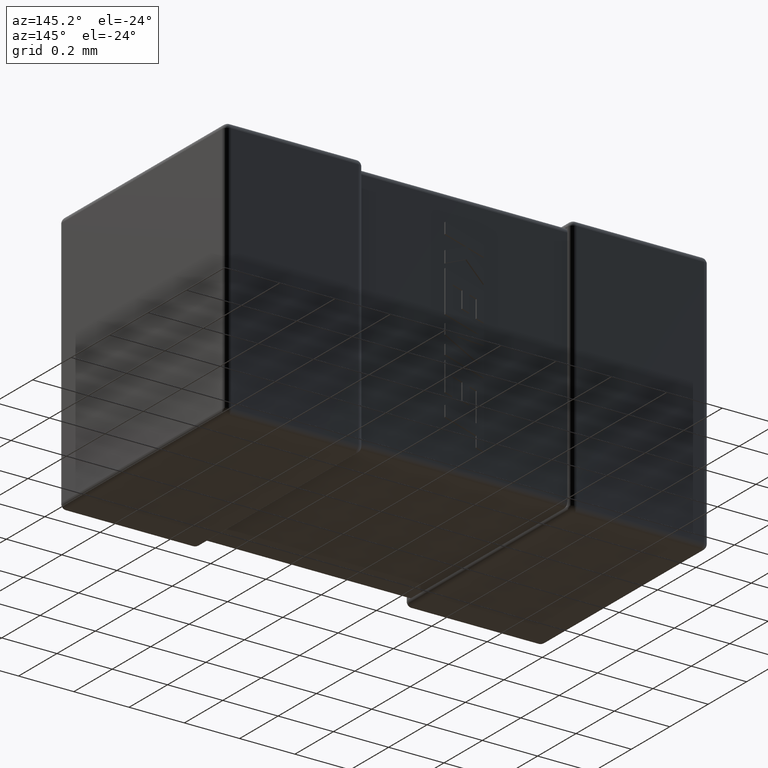
[diagram: clean part render]
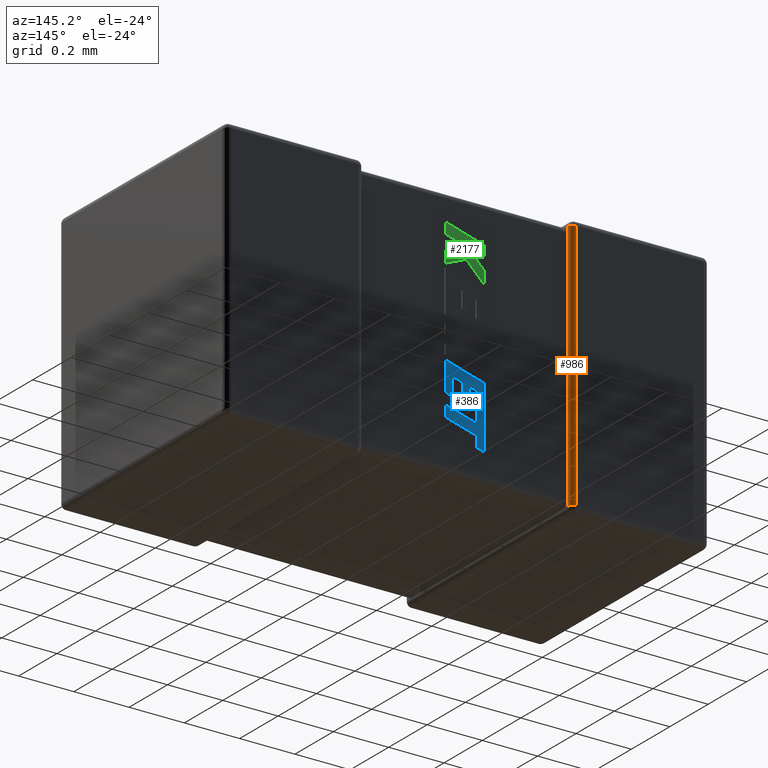
[diagram: same view with three faces highlighted in distinct colors, each labeled with its STEP entity id]
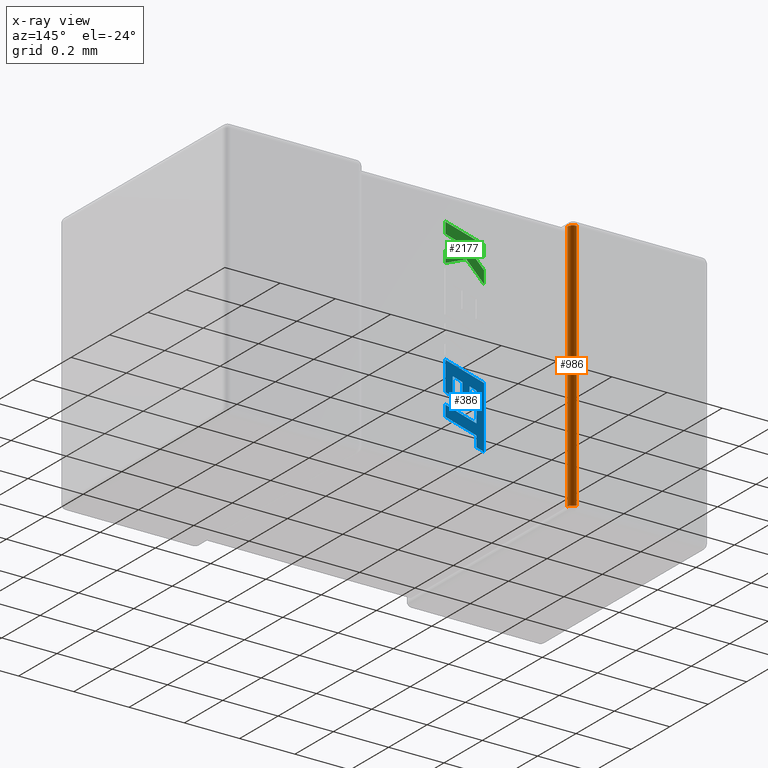
[diagram: x-ray of the same camera — body ghosted, the three highlighted faces saturated]
A machine part, auxiliary view with three faces highlighted in distinct colors.
The next image is the same camera in x-ray (body ghosted, the three faces saturated) — at least one of them is partly hidden behind the body in this view.
Their STEP definitions:

[orange] entity #986 — the highlighted cylindrical surface (edge-blend (fillet) strip) has radius 0.0198 mm, axis along (0, 0, 1).
#17 = DIRECTION ( 'NONE',  ( 0.000000000000000000, 0.000000000000000000, -1.000000000000000000 ) ) ;
#247 = EDGE_CURVE ( 'NONE', #4336, #4497, #4153, .T. ) ;
#357 = EDGE_CURVE ( 'NONE', #700, #870, #3877, .T. ) ;
#481 = CARTESIAN_POINT ( 'NONE',  ( 0.4999999999999998890, 0.8502400000000001068, -0.9500000000000000666 ) ) ;
#582 = CARTESIAN_POINT ( 'NONE',  ( 0.4802399999999998337, 0.8700000000000001066, 0.000000000000000000 ) ) ;
#700 = VERTEX_POINT ( 'NONE', #1347 ) ;
#714 = FACE_OUTER_BOUND ( 'NONE', #2705, .T. ) ;
#759 = CARTESIAN_POINT ( 'NONE',  ( 0.4999999999999998890, 0.8502400000000001068, -0.9500000000000000666 ) ) ;
#787 = ORIENTED_EDGE ( 'NONE', *, *, #247, .F. ) ;
#853 = ORIENTED_EDGE ( 'NONE', *, *, #4557, .F. ) ;
#870 = VERTEX_POINT ( 'NONE', #3107 ) ;
#873 = DIRECTION ( 'NONE',  ( 0.000000000000000000, 0.000000000000000000, 1.000000000000000000 ) ) ;
#986 = ADVANCED_FACE ( 'NONE', ( #714 ), #4658, .T. ) ;
#1283 = EDGE_CURVE ( 'NONE', #3231, #700, #4412, .T. ) ;
#1296 = CARTESIAN_POINT ( 'NONE',  ( 0.4802399999999998892, 0.8502400000000001068, -0.01975999999999995815 ) ) ;
#1347 = CARTESIAN_POINT ( 'NONE',  ( 0.4999999999999998890, 0.8502400000000001068, -0.9302400000000001778 ) ) ;
#1364 = VECTOR ( 'NONE', #873, 1000.000000000000000 ) ;
#1442 = VECTOR ( 'NONE', #4615, 1000.000000000000000 ) ;
#1495 = CARTESIAN_POINT ( 'NONE',  ( 0.4802399999999998892, 0.8700000000000001066, -0.01975999999999999979 ) ) ;
#1540 = VERTEX_POINT ( 'NONE', #2756 ) ;
#1549 = EDGE_CURVE ( 'NONE', #4497, #3231, #3796, .T. ) ;
#1568 = LINE ( 'NONE', #481, #1364 ) ;
#1655 = ORIENTED_EDGE ( 'NONE', *, *, #1549, .F. ) ;
#1734 = DIRECTION ( 'NONE',  ( 0.000000000000000000, 0.000000000000000000, 1.000000000000000000 ) ) ;
#1868 = ORIENTED_EDGE ( 'NONE', *, *, #1283, .F. ) ;
#2485 = DIRECTION ( 'NONE',  ( 1.000000000000000000, 0.000000000000000000, 0.000000000000000000 ) ) ;
#2509 = CARTESIAN_POINT ( 'NONE',  ( 0.4802399999999998892, 0.8502400000000001068, -0.9500000000000000666 ) ) ;
#2608 = AXIS2_PLACEMENT_3D ( 'NONE', #2509, #1734, #2485 ) ;
#2705 = EDGE_LOOP ( 'NONE', ( #3013, #1868, #1655, #787, #853, #3981 ) ) ;
#2707 = DIRECTION ( 'NONE',  ( -0.000000000000000000, -0.000000000000000000, -1.000000000000000000 ) ) ;
#2756 = CARTESIAN_POINT ( 'NONE',  ( 0.4999999999999998890, 0.8502400000000001068, -0.03951999999999991631 ) ) ;
#2757 = VECTOR ( 'NONE', #2707, 1000.000000000000000 ) ;
#2888 = DIRECTION ( 'NONE',  ( -0.000000000000000000, -0.000000000000000000, 1.000000000000000000 ) ) ;
#3013 = ORIENTED_EDGE ( 'NONE', *, *, #357, .F. ) ;
#3073 = AXIS2_PLACEMENT_3D ( 'NONE', #3821, #17, #3932 ) ;
#3107 = CARTESIAN_POINT ( 'NONE',  ( 0.4999999999999998890, 0.8502400000000001068, -0.9104800000000001781 ) ) ;
#3231 = VERTEX_POINT ( 'NONE', #4506 ) ;
#3242 = LINE ( 'NONE', #759, #4236 ) ;
#3600 = CARTESIAN_POINT ( 'NONE',  ( 0.4999999999999998890, 0.8502400000000001068, -0.9500000000000000666 ) ) ;
#3796 = LINE ( 'NONE', #582, #2757 ) ;
#3821 = CARTESIAN_POINT ( 'NONE',  ( 0.4802399999999998892, 0.8502400000000001068, -0.9302400000000001778 ) ) ;
#3877 = LINE ( 'NONE', #3600, #1442 ) ;
#3932 = DIRECTION ( 'NONE',  ( -1.000000000000000000, 0.000000000000000000, 0.000000000000000000 ) ) ;
#3981 = ORIENTED_EDGE ( 'NONE', *, *, #4475, .F. ) ;
#4089 = DIRECTION ( 'NONE',  ( 0.000000000000000000, -1.000000000000000000, 2.057569912358628671E-15 ) ) ;
#4153 = CIRCLE ( 'NONE', #4228, 0.01975999999999995815 ) ;
#4228 = AXIS2_PLACEMENT_3D ( 'NONE', #1296, #4498, #4089 ) ;
#4236 = VECTOR ( 'NONE', #2888, 1000.000000000000000 ) ;
#4252 = CARTESIAN_POINT ( 'NONE',  ( 0.5000000000000000000, 0.8502400000000001068, -0.01975999999999995815 ) ) ;
#4336 = VERTEX_POINT ( 'NONE', #4252 ) ;
#4412 = CIRCLE ( 'NONE', #3073, 0.01976000000000001366 ) ;
#4475 = EDGE_CURVE ( 'NONE', #870, #1540, #3242, .T. ) ;
#4497 = VERTEX_POINT ( 'NONE', #1495 ) ;
#4498 = DIRECTION ( 'NONE',  ( 1.128958385131595415E-29, 2.057569912358628671E-15, 1.000000000000000000 ) ) ;
#4506 = CARTESIAN_POINT ( 'NONE',  ( 0.4802399999999998892, 0.8700000000000001066, -0.9302400000000001778 ) ) ;
#4557 = EDGE_CURVE ( 'NONE', #1540, #4336, #1568, .T. ) ;
#4615 = DIRECTION ( 'NONE',  ( 0.000000000000000000, 0.000000000000000000, 1.000000000000000000 ) ) ;
#4658 = CYLINDRICAL_SURFACE ( 'NONE', #2608, 0.01976000000000001366 ) ;

[blue] entity #386 — the highlighted planar face has unit normal (0, 1, 0).
#27 = DIRECTION ( 'NONE',  ( 0.000000000000000000, 0.000000000000000000, -1.000000000000000000 ) ) ;
#32 = DIRECTION ( 'NONE',  ( -0.9610992334305258344, 0.000000000000000000, -0.2762033010288897361 ) ) ;
#49 = VERTEX_POINT ( 'NONE', #2759 ) ;
#51 = LINE ( 'NONE', #1470, #997 ) ;
#142 = VECTOR ( 'NONE', #27, 1000.000000000000000 ) ;
#150 = VERTEX_POINT ( 'NONE', #2129 ) ;
#229 = VERTEX_POINT ( 'NONE', #3490 ) ;
#240 = VECTOR ( 'NONE', #323, 1000.000000000000000 ) ;
#280 = LINE ( 'NONE', #3163, #3112 ) ;
#293 = EDGE_CURVE ( 'NONE', #2397, #1569, #669, .T. ) ;
#296 = EDGE_CURVE ( 'NONE', #2839, #2088, #2841, .T. ) ;
#323 = DIRECTION ( 'NONE',  ( 0.000000000000000000, 0.000000000000000000, -1.000000000000000000 ) ) ;
#339 = VERTEX_POINT ( 'NONE', #4255 ) ;
#386 = ADVANCED_FACE ( 'NONE', ( #1386 ), #2080, .T. ) ;
#391 = AXIS2_PLACEMENT_3D ( 'NONE', #3204, #1411, #2817 ) ;
#480 = VERTEX_POINT ( 'NONE', #2910 ) ;
#484 = CARTESIAN_POINT ( 'NONE',  ( 0.8579047061092540671, 0.8552400000000002223, -0.6320972640410175147 ) ) ;
#495 = LINE ( 'NONE', #3378, #1448 ) ;
#519 = LINE ( 'NONE', #1634, #1615 ) ;
#538 = VECTOR ( 'NONE', #1329, 1000.000000000000000 ) ;
#602 = CARTESIAN_POINT ( 'NONE',  ( 0.8053395720805847091, 0.8552400000000002223, -0.6076780704998633320 ) ) ;
#659 = ORIENTED_EDGE ( 'NONE', *, *, #3129, .T. ) ;
#669 = LINE ( 'NONE', #3860, #240 ) ;
#716 = ORIENTED_EDGE ( 'NONE', *, *, #1315, .T. ) ;
#774 = ORIENTED_EDGE ( 'NONE', *, *, #4413, .T. ) ;
#819 = VECTOR ( 'NONE', #3914, 1000.000000000000114 ) ;
#894 = LINE ( 'NONE', #3799, #2950 ) ;
#967 = ORIENTED_EDGE ( 'NONE', *, *, #4437, .T. ) ;
#997 = VECTOR ( 'NONE', #2216, 1000.000000000000000 ) ;
#1032 = CARTESIAN_POINT ( 'NONE',  ( 0.9450000000000022826, 0.8552400000000002223, -0.5675068321918840253 ) ) ;
#1061 = VECTOR ( 'NONE', #3375, 1000.000000000000000 ) ;
#1212 = LINE ( 'NONE', #2310, #3162 ) ;
#1315 = EDGE_CURVE ( 'NONE', #3569, #150, #1392, .T. ) ;
#1329 = DIRECTION ( 'NONE',  ( 0.000000000000000000, 0.000000000000000000, -1.000000000000000000 ) ) ;
#1363 = CARTESIAN_POINT ( 'NONE',  ( 0.8837184572186719267, 0.8552400000000002223, -0.6846573022445086032 ) ) ;
#1372 = VECTOR ( 'NONE', #3229, 1000.000000000000227 ) ;
#1386 = FACE_OUTER_BOUND ( 'NONE', #4156, .T. ) ;
#1392 = LINE ( 'NONE', #2046, #4264 ) ;
#1411 = DIRECTION ( 'NONE',  ( 0.000000000000000000, 1.000000000000000000, 0.000000000000000000 ) ) ;
#1414 = VERTEX_POINT ( 'NONE', #4021 ) ;
#1421 = LINE ( 'NONE', #2483, #819 ) ;
#1448 = VECTOR ( 'NONE', #3092, 1000.000000000000227 ) ;
#1454 = CARTESIAN_POINT ( 'NONE',  ( 0.8323054043045601258, 0.8552400000000002223, -0.7858892641360935016 ) ) ;
#1470 = CARTESIAN_POINT ( 'NONE',  ( 0.8053395720805847091, 0.8552400000000002223, -0.8318773867419929635 ) ) ;
#1473 = VERTEX_POINT ( 'NONE', #602 ) ;
#1552 = ORIENTED_EDGE ( 'NONE', *, *, #3099, .T. ) ;
#1569 = VERTEX_POINT ( 'NONE', #1363 ) ;
#1610 = CARTESIAN_POINT ( 'NONE',  ( 0.8053395720805847091, 0.8552400000000002223, -0.8318773867419929635 ) ) ;
#1615 = VECTOR ( 'NONE', #4570, 1000.000000000000227 ) ;
#1634 = CARTESIAN_POINT ( 'NONE',  ( 0.8837184572186719267, 0.8552400000000002223, -0.6846573022445086032 ) ) ;
#1754 = CARTESIAN_POINT ( 'NONE',  ( 0.8323084399399934830, 0.8552400000000002223, -0.8241270004460923282 ) ) ;
#1873 = LINE ( 'NONE', #484, #3327 ) ;
#1887 = EDGE_CURVE ( 'NONE', #339, #2151, #1873, .T. ) ;
#1892 = CARTESIAN_POINT ( 'NONE',  ( 0.8319278885981585825, 0.8552400000000002223, -0.6396560712027574702 ) ) ;
#1935 = CARTESIAN_POINT ( 'NONE',  ( 0.8579047061092540671, 0.8552400000000002223, -0.6920318104001741411 ) ) ;
#1953 = DIRECTION ( 'NONE',  ( 0.000000000000000000, 0.000000000000000000, 1.000000000000000000 ) ) ;
#1992 = VERTEX_POINT ( 'NONE', #4160 ) ;
#2046 = CARTESIAN_POINT ( 'NONE',  ( 0.8323054043042135142, 0.8552400000000002223, -0.7461146509902788493 ) ) ;
#2070 = EDGE_CURVE ( 'NONE', #1992, #3392, #4555, .T. ) ;
#2080 = PLANE ( 'NONE',  #391 ) ;
#2088 = VERTEX_POINT ( 'NONE', #1754 ) ;
#2097 = EDGE_CURVE ( 'NONE', #49, #2839, #3846, .T. ) ;
#2109 = CARTESIAN_POINT ( 'NONE',  ( 0.8837184572186719267, 0.8552400000000002223, -0.6247312489271079627 ) ) ;
#2129 = CARTESIAN_POINT ( 'NONE',  ( 0.9450000000000022826, 0.8552400000000002223, -0.7137136966958725903 ) ) ;
#2151 = VERTEX_POINT ( 'NONE', #1892 ) ;
#2206 = CARTESIAN_POINT ( 'NONE',  ( 0.9450000000000022826, 0.8552400000000002223, -0.6730243829530004884 ) ) ;
#2216 = DIRECTION ( 'NONE',  ( 0.000000000000000000, 0.000000000000000000, 1.000000000000000000 ) ) ;
#2230 = ORIENTED_EDGE ( 'NONE', *, *, #2097, .T. ) ;
#2301 = ORIENTED_EDGE ( 'NONE', *, *, #3925, .T. ) ;
#2310 = CARTESIAN_POINT ( 'NONE',  ( 0.8323084399399934830, 0.8552400000000002223, -0.8241270004460923282 ) ) ;
#2358 = EDGE_CURVE ( 'NONE', #480, #3569, #495, .T. ) ;
#2393 = EDGE_CURVE ( 'NONE', #229, #2397, #894, .T. ) ;
#2397 = VERTEX_POINT ( 'NONE', #2109 ) ;
#2483 = CARTESIAN_POINT ( 'NONE',  ( 0.9450000000000022826, 0.8552400000000002223, -0.6730243829530004884 ) ) ;
#2551 = CARTESIAN_POINT ( 'NONE',  ( 0.9450000000000022826, 0.8552400000000002223, -0.7137136966958725903 ) ) ;
#2581 = ORIENTED_EDGE ( 'NONE', *, *, #3504, .T. ) ;
#2691 = DIRECTION ( 'NONE',  ( -0.9615825319869173438, 0.000000000000000000, -0.2745159998572558879 ) ) ;
#2717 = ORIENTED_EDGE ( 'NONE', *, *, #4273, .T. ) ;
#2759 = CARTESIAN_POINT ( 'NONE',  ( 0.9450000000000022826, 0.8552400000000002223, -0.7534976521876876054 ) ) ;
#2776 = DIRECTION ( 'NONE',  ( 0.9610348236706638403, 0.000000000000000000, 0.2764273280489755735 ) ) ;
#2813 = DIRECTION ( 'NONE',  ( 0.002813301676014988168, 0.000000000000000000, -0.9999960426590095430 ) ) ;
#2817 = DIRECTION ( 'NONE',  ( 0.000000000000000000, 0.000000000000000000, 1.000000000000000000 ) ) ;
#2839 = VERTEX_POINT ( 'NONE', #1454 ) ;
#2841 = LINE ( 'NONE', #3922, #1372 ) ;
#2910 = CARTESIAN_POINT ( 'NONE',  ( 0.8321079410834057999, 0.8552400000000002223, -0.7036562366500394017 ) ) ;
#2949 = EDGE_CURVE ( 'NONE', #2088, #4322, #1212, .T. ) ;
#2950 = VECTOR ( 'NONE', #2691, 1000.000000000000227 ) ;
#3017 = LINE ( 'NONE', #4472, #4544 ) ;
#3028 = ORIENTED_EDGE ( 'NONE', *, *, #1887, .T. ) ;
#3092 = DIRECTION ( 'NONE',  ( 0.004650693823668813724, 0.000000000000000000, -0.9999891854650021505 ) ) ;
#3099 = EDGE_CURVE ( 'NONE', #3392, #4057, #1421, .T. ) ;
#3112 = VECTOR ( 'NONE', #2776, 1000.000000000000227 ) ;
#3129 = EDGE_CURVE ( 'NONE', #150, #49, #3286, .T. ) ;
#3162 = VECTOR ( 'NONE', #32, 1000.000000000000227 ) ;
#3163 = CARTESIAN_POINT ( 'NONE',  ( 0.8053395720805847091, 0.8552400000000002223, -0.6076780704998633320 ) ) ;
#3204 = CARTESIAN_POINT ( 'NONE',  ( 0.007753220357564218589, 0.8552400000000000002, 0.002149546054919077975 ) ) ;
#3206 = ORIENTED_EDGE ( 'NONE', *, *, #2949, .T. ) ;
#3229 = DIRECTION ( 'NONE',  ( 7.938847109757215918E-05, 0.000000000000000000, -0.9999999968487351953 ) ) ;
#3286 = LINE ( 'NONE', #2551, #142 ) ;
#3313 = DIRECTION ( 'NONE',  ( -0.9601763114346046901, 0.000000000000000000, -0.2793947940814874298 ) ) ;
#3327 = VECTOR ( 'NONE', #3313, 1000.000000000000114 ) ;
#3375 = DIRECTION ( 'NONE',  ( 0.000000000000000000, 0.000000000000000000, 1.000000000000000000 ) ) ;
#3378 = CARTESIAN_POINT ( 'NONE',  ( 0.8321079410834057999, 0.8552400000000002223, -0.7036562366500394017 ) ) ;
#3392 = VERTEX_POINT ( 'NONE', #2206 ) ;
#3490 = CARTESIAN_POINT ( 'NONE',  ( 0.9184244230453183500, 0.8552400000000002223, -0.6148232664159997141 ) ) ;
#3500 = CARTESIAN_POINT ( 'NONE',  ( 0.9450000000000022826, 0.8552400000000002223, -0.7534976521876876054 ) ) ;
#3504 = EDGE_CURVE ( 'NONE', #1414, #339, #4499, .T. ) ;
#3569 = VERTEX_POINT ( 'NONE', #3649 ) ;
#3579 = CARTESIAN_POINT ( 'NONE',  ( 0.9184244230453183500, 0.8552400000000002223, -0.6805653547270347214 ) ) ;
#3621 = ORIENTED_EDGE ( 'NONE', *, *, #296, .T. ) ;
#3649 = CARTESIAN_POINT ( 'NONE',  ( 0.8323054043042135142, 0.8552400000000002223, -0.7461146509902788493 ) ) ;
#3726 = ORIENTED_EDGE ( 'NONE', *, *, #2070, .T. ) ;
#3799 = CARTESIAN_POINT ( 'NONE',  ( 0.9184244230453183500, 0.8552400000000002223, -0.6148232664159997141 ) ) ;
#3846 = LINE ( 'NONE', #3500, #3921 ) ;
#3860 = CARTESIAN_POINT ( 'NONE',  ( 0.8837184572186719267, 0.8552400000000002223, -0.6247312489271079627 ) ) ;
#3875 = ORIENTED_EDGE ( 'NONE', *, *, #293, .T. ) ;
#3910 = DIRECTION ( 'NONE',  ( -0.9610876102172832836, 0.000000000000000000, -0.2762437428917279281 ) ) ;
#3914 = DIRECTION ( 'NONE',  ( -0.9620200793798762140, 0.000000000000000000, -0.2729786930695082825 ) ) ;
#3921 = VECTOR ( 'NONE', #3910, 1000.000000000000227 ) ;
#3922 = CARTESIAN_POINT ( 'NONE',  ( 0.8323054043045601258, 0.8552400000000002223, -0.7858892641360935016 ) ) ;
#3925 = EDGE_CURVE ( 'NONE', #1569, #1414, #519, .T. ) ;
#3937 = ORIENTED_EDGE ( 'NONE', *, *, #4094, .T. ) ;
#4021 = CARTESIAN_POINT ( 'NONE',  ( 0.8579047061092540671, 0.8552400000000002223, -0.6920318104001741411 ) ) ;
#4057 = VERTEX_POINT ( 'NONE', #3579 ) ;
#4094 = EDGE_CURVE ( 'NONE', #1473, #1992, #280, .T. ) ;
#4114 = CARTESIAN_POINT ( 'NONE',  ( 0.9184244230453183500, 0.8552400000000002223, -0.6805653547270347214 ) ) ;
#4156 = EDGE_LOOP ( 'NONE', ( #2717, #4168, #716, #659, #2230, #3621, #3206, #967, #3937, #3726, #1552, #774, #4301, #3875, #2301, #2581, #3028 ) ) ;
#4160 = CARTESIAN_POINT ( 'NONE',  ( 0.9450000000000022826, 0.8552400000000002223, -0.5675068321918840253 ) ) ;
#4168 = ORIENTED_EDGE ( 'NONE', *, *, #2358, .T. ) ;
#4255 = CARTESIAN_POINT ( 'NONE',  ( 0.8579047061092540671, 0.8552400000000002223, -0.6320972640410175147 ) ) ;
#4264 = VECTOR ( 'NONE', #4327, 1000.000000000000000 ) ;
#4273 = EDGE_CURVE ( 'NONE', #2151, #480, #3017, .T. ) ;
#4301 = ORIENTED_EDGE ( 'NONE', *, *, #2393, .T. ) ;
#4304 = VECTOR ( 'NONE', #1953, 1000.000000000000000 ) ;
#4322 = VERTEX_POINT ( 'NONE', #1610 ) ;
#4327 = DIRECTION ( 'NONE',  ( 0.9610664548998939516, 0.000000000000000000, 0.2763173343569854667 ) ) ;
#4413 = EDGE_CURVE ( 'NONE', #4057, #229, #4583, .T. ) ;
#4437 = EDGE_CURVE ( 'NONE', #4322, #1473, #51, .T. ) ;
#4472 = CARTESIAN_POINT ( 'NONE',  ( 0.8319278885981585825, 0.8552400000000002223, -0.6396560712027574702 ) ) ;
#4499 = LINE ( 'NONE', #1935, #1061 ) ;
#4544 = VECTOR ( 'NONE', #2813, 1000.000000000000114 ) ;
#4555 = LINE ( 'NONE', #1032, #538 ) ;
#4570 = DIRECTION ( 'NONE',  ( -0.9615323037684311291, 0.000000000000000000, -0.2746918797667186607 ) ) ;
#4583 = LINE ( 'NONE', #4114, #4304 ) ;

[green] entity #2177 — the highlighted planar face has unit normal (0, -1, 0).
#10 = VECTOR ( 'NONE', #4458, 1000.000000000000114 ) ;
#14 = VERTEX_POINT ( 'NONE', #1659 ) ;
#20 = CARTESIAN_POINT ( 'NONE',  ( 0.8053395720805847091, 0.8552400000000002223, -0.2409347205527409552 ) ) ;
#37 = VERTEX_POINT ( 'NONE', #2710 ) ;
#59 = CARTESIAN_POINT ( 'NONE',  ( 0.8648961780810566768, 0.8552400000000002223, -0.1815802489450945578 ) ) ;
#70 = VERTEX_POINT ( 'NONE', #3233 ) ;
#140 = VERTEX_POINT ( 'NONE', #673 ) ;
#188 = EDGE_CURVE ( 'NONE', #592, #4006, #747, .T. ) ;
#372 = CARTESIAN_POINT ( 'NONE',  ( 0.9450000000000022826, 0.8552400000000002223, -0.2531307284004367109 ) ) ;
#379 = PLANE ( 'NONE',  #2651 ) ;
#565 = EDGE_CURVE ( 'NONE', #140, #4518, #3909, .T. ) ;
#592 = VERTEX_POINT ( 'NONE', #3283 ) ;
#637 = LINE ( 'NONE', #4086, #1068 ) ;
#673 = CARTESIAN_POINT ( 'NONE',  ( 0.8691681780842974714, 0.8552400000000002223, -0.1801980062877185373 ) ) ;
#683 = CARTESIAN_POINT ( 'NONE',  ( 0.9450000000000022826, 0.8552400000000002223, -0.2106366432846774606 ) ) ;
#687 = CARTESIAN_POINT ( 'NONE',  ( 0.8053395720805847091, 0.8552400000000002223, -0.2868956653127817669 ) ) ;
#747 = LINE ( 'NONE', #3690, #2131 ) ;
#806 = ORIENTED_EDGE ( 'NONE', *, *, #565, .T. ) ;
#909 = VERTEX_POINT ( 'NONE', #3039 ) ;
#945 = LINE ( 'NONE', #3774, #10 ) ;
#975 = LINE ( 'NONE', #2389, #3755 ) ;
#1041 = ORIENTED_EDGE ( 'NONE', *, *, #1691, .T. ) ;
#1068 = VECTOR ( 'NONE', #2767, 1000.000000000000000 ) ;
#1079 = LINE ( 'NONE', #20, #1612 ) ;
#1081 = FACE_OUTER_BOUND ( 'NONE', #3819, .T. ) ;
#1149 = DIRECTION ( 'NONE',  ( 5.943634068010692500E-14, 0.000000000000000000, -1.000000000000000000 ) ) ;
#1178 = CARTESIAN_POINT ( 'NONE',  ( 0.8053395720805847091, 0.8552400000000002223, -0.1588859920725401997 ) ) ;
#1286 = ORIENTED_EDGE ( 'NONE', *, *, #2833, .T. ) ;
#1316 = EDGE_CURVE ( 'NONE', #4518, #70, #1687, .T. ) ;
#1595 = VECTOR ( 'NONE', #2160, 1000.000000000000114 ) ;
#1612 = VECTOR ( 'NONE', #2524, 1000.000000000000000 ) ;
#1659 = CARTESIAN_POINT ( 'NONE',  ( 0.8648961780810566768, 0.8552400000000002223, -0.1815802489450945578 ) ) ;
#1687 = LINE ( 'NONE', #372, #2250 ) ;
#1691 = EDGE_CURVE ( 'NONE', #37, #14, #2225, .T. ) ;
#1950 = VECTOR ( 'NONE', #3920, 1000.000000000000114 ) ;
#2099 = ORIENTED_EDGE ( 'NONE', *, *, #2294, .T. ) ;
#2128 = VERTEX_POINT ( 'NONE', #3616 ) ;
#2131 = VECTOR ( 'NONE', #1149, 1000.000000000000000 ) ;
#2160 = DIRECTION ( 'NONE',  ( 0.9280290862136694185, 0.000000000000000000, -0.3725077383644824769 ) ) ;
#2177 = ADVANCED_FACE ( 'NONE', ( #1081 ), #379, .F. ) ;
#2213 = DIRECTION ( 'NONE',  ( 0.000000000000000000, 0.000000000000000000, -1.000000000000000000 ) ) ;
#2225 = LINE ( 'NONE', #59, #3476 ) ;
#2250 = VECTOR ( 'NONE', #4262, 1000.000000000000000 ) ;
#2255 = LINE ( 'NONE', #3682, #4606 ) ;
#2256 = ORIENTED_EDGE ( 'NONE', *, *, #3359, .T. ) ;
#2269 = VERTEX_POINT ( 'NONE', #1178 ) ;
#2278 = CARTESIAN_POINT ( 'NONE',  ( 0.007753220357564218589, 0.8552400000000000002, 0.002149546054919077975 ) ) ;
#2294 = EDGE_CURVE ( 'NONE', #909, #3125, #2255, .T. ) ;
#2303 = DIRECTION ( 'NONE',  ( -0.6995643972270459976, 0.000000000000000000, -0.7145695586381773934 ) ) ;
#2329 = EDGE_CURVE ( 'NONE', #14, #2128, #945, .T. ) ;
#2365 = CARTESIAN_POINT ( 'NONE',  ( 0.9449999999999998401, 0.8552400000000002223, -0.1187500000000000083 ) ) ;
#2389 = CARTESIAN_POINT ( 'NONE',  ( 0.8691681780842958061, 0.8552400000000002223, -0.2216979808660716478 ) ) ;
#2524 = DIRECTION ( 'NONE',  ( 0.000000000000000000, 0.000000000000000000, 1.000000000000000000 ) ) ;
#2651 = AXIS2_PLACEMENT_3D ( 'NONE', #2278, #3985, #2213 ) ;
#2710 = CARTESIAN_POINT ( 'NONE',  ( 0.8053395720805847091, 0.8552400000000002223, -0.2409347205527409552 ) ) ;
#2721 = EDGE_CURVE ( 'NONE', #2269, #592, #4519, .T. ) ;
#2728 = EDGE_CURVE ( 'NONE', #70, #909, #975, .T. ) ;
#2733 = ORIENTED_EDGE ( 'NONE', *, *, #2329, .T. ) ;
#2755 = DIRECTION ( 'NONE',  ( -0.9237839814038673047, 0.000000000000000000, 0.3829140317376986125 ) ) ;
#2764 = ORIENTED_EDGE ( 'NONE', *, *, #1316, .T. ) ;
#2767 = DIRECTION ( 'NONE',  ( 0.000000000000000000, 0.000000000000000000, 1.000000000000000000 ) ) ;
#2833 = EDGE_CURVE ( 'NONE', #4006, #140, #3180, .T. ) ;
#2933 = ORIENTED_EDGE ( 'NONE', *, *, #2721, .T. ) ;
#2967 = DIRECTION ( 'NONE',  ( 0.7083077534944018927, 0.000000000000000000, 0.7059037656364454127 ) ) ;
#3039 = CARTESIAN_POINT ( 'NONE',  ( 0.8691681780842958061, 0.8552400000000002223, -0.2216979808660716478 ) ) ;
#3125 = VERTEX_POINT ( 'NONE', #687 ) ;
#3180 = LINE ( 'NONE', #4294, #1950 ) ;
#3233 = CARTESIAN_POINT ( 'NONE',  ( 0.9450000000000022826, 0.8552400000000002223, -0.2531307284004367109 ) ) ;
#3283 = CARTESIAN_POINT ( 'NONE',  ( 0.9449999999999998401, 0.8552400000000002223, -0.1187500000000000083 ) ) ;
#3359 = EDGE_CURVE ( 'NONE', #3125, #37, #1079, .T. ) ;
#3432 = ORIENTED_EDGE ( 'NONE', *, *, #2728, .T. ) ;
#3476 = VECTOR ( 'NONE', #2967, 1000.000000000000114 ) ;
#3616 = CARTESIAN_POINT ( 'NONE',  ( 0.8053395720805847091, 0.8552400000000002223, -0.1986521121766705866 ) ) ;
#3682 = CARTESIAN_POINT ( 'NONE',  ( 0.8053395720805847091, 0.8552400000000002223, -0.2868956653127817669 ) ) ;
#3690 = CARTESIAN_POINT ( 'NONE',  ( 0.9450000000000022826, 0.8552400000000002223, -0.1584630384810248871 ) ) ;
#3755 = VECTOR ( 'NONE', #2755, 1000.000000000000227 ) ;
#3774 = CARTESIAN_POINT ( 'NONE',  ( 0.8053395720805847091, 0.8552400000000002223, -0.1986521121766705866 ) ) ;
#3797 = CARTESIAN_POINT ( 'NONE',  ( 0.9450000000000022826, 0.8552400000000002223, -0.1584630384810248871 ) ) ;
#3819 = EDGE_LOOP ( 'NONE', ( #2933, #3889, #1286, #806, #2764, #3432, #2099, #2256, #1041, #2733, #4048 ) ) ;
#3857 = DIRECTION ( 'NONE',  ( 0.9610992334315860974, 0.000000000000000000, 0.2762033010252007426 ) ) ;
#3889 = ORIENTED_EDGE ( 'NONE', *, *, #188, .T. ) ;
#3909 = LINE ( 'NONE', #683, #1595 ) ;
#3920 = DIRECTION ( 'NONE',  ( -0.9612934544747571142, 0.000000000000000000, -0.2755265765475047868 ) ) ;
#3985 = DIRECTION ( 'NONE',  ( 0.000000000000000000, -1.000000000000000000, 0.000000000000000000 ) ) ;
#4006 = VERTEX_POINT ( 'NONE', #3797 ) ;
#4048 = ORIENTED_EDGE ( 'NONE', *, *, #4387, .T. ) ;
#4086 = CARTESIAN_POINT ( 'NONE',  ( 0.8053395720805847091, 0.8552400000000002223, -0.1588859920725401997 ) ) ;
#4127 = CARTESIAN_POINT ( 'NONE',  ( 0.9450000000000022826, 0.8552400000000002223, -0.2106366432846774606 ) ) ;
#4262 = DIRECTION ( 'NONE',  ( 0.000000000000000000, 0.000000000000000000, -1.000000000000000000 ) ) ;
#4278 = VECTOR ( 'NONE', #3857, 1000.000000000000114 ) ;
#4294 = CARTESIAN_POINT ( 'NONE',  ( 0.8691681780842974714, 0.8552400000000002223, -0.1801980062877185373 ) ) ;
#4387 = EDGE_CURVE ( 'NONE', #2128, #2269, #637, .T. ) ;
#4458 = DIRECTION ( 'NONE',  ( -0.9612861490927336883, 0.000000000000000000, -0.2755520632520512270 ) ) ;
#4518 = VERTEX_POINT ( 'NONE', #4127 ) ;
#4519 = LINE ( 'NONE', #2365, #4278 ) ;
#4606 = VECTOR ( 'NONE', #2303, 1000.000000000000114 ) ;